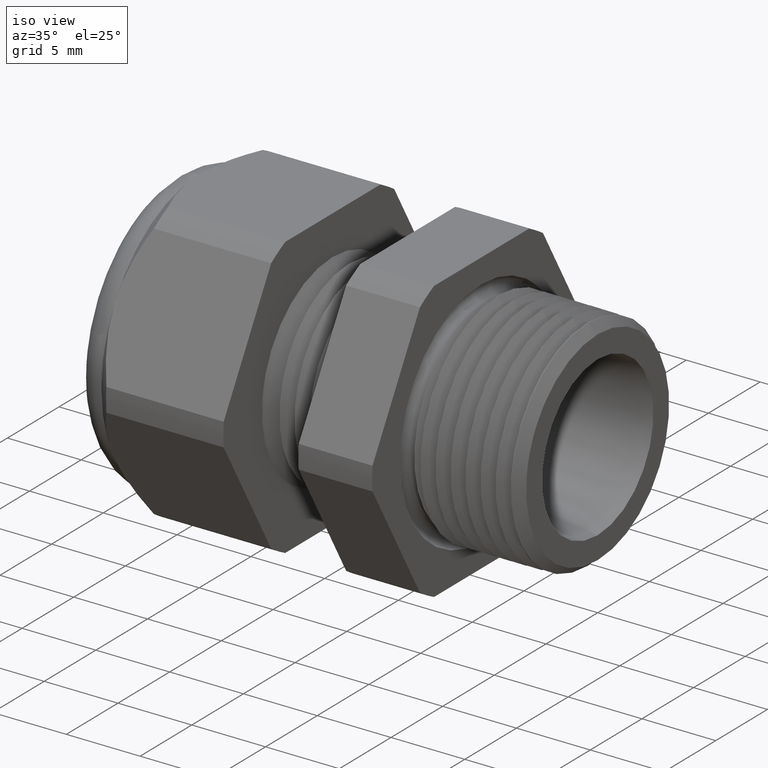
[diagram: clean part render]
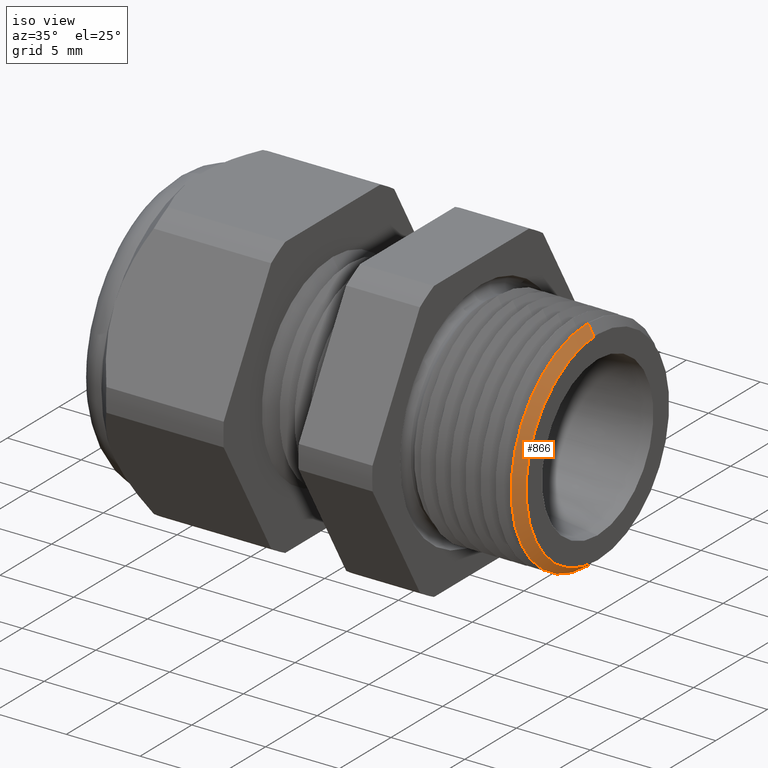
[diagram: same view with one face highlighted and labeled with its STEP entity id]
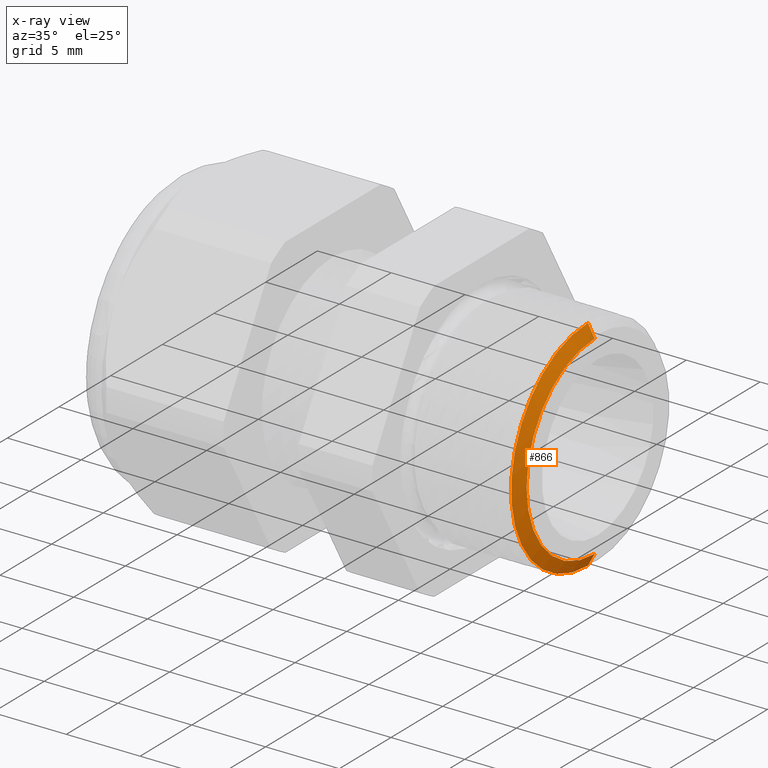
[diagram: x-ray of the same camera — body ghosted, the highlighted face saturated]
A machine part, iso view. The second image highlights one B-rep face of the part: STEP entity #866.
The next image is the same camera in x-ray: the body ghosted, the highlighted face saturated — about 0% of this face is hidden behind the body in this view.
In plain terms, the highlighted conical surface has half-angle 61.5 deg.
Its self-contained STEP definition (entity closure, byte-faithful):
#437 = EDGE_CURVE ( 'NONE', #978, #975, #2000, .T. ) ;
#866 = ADVANCED_FACE ( 'NONE', ( #2662 ), #2661, .T. ) ;
#867 = EDGE_LOOP ( 'NONE', ( #868, #869, #871, #872 ) ) ;
#868 = ORIENTED_EDGE ( 'NONE', *, *, #974, .F. ) ;
#869 = ORIENTED_EDGE ( 'NONE', *, *, #870, .F. ) ;
#870 = EDGE_CURVE ( 'NONE', #1009, #1008, #2718, .T. ) ;
#871 = ORIENTED_EDGE ( 'NONE', *, *, #980, .T. ) ;
#872 = ORIENTED_EDGE ( 'NONE', *, *, #437, .T. ) ;
#974 = EDGE_CURVE ( 'NONE', #1008, #975, #2836, .T. ) ;
#975 = VERTEX_POINT ( 'NONE', #2832 ) ;
#978 = VERTEX_POINT ( 'NONE', #2826 ) ;
#980 = EDGE_CURVE ( 'NONE', #1009, #978, #2825, .T. ) ;
#1008 = VERTEX_POINT ( 'NONE', #2884 ) ;
#1009 = VERTEX_POINT ( 'NONE', #2883 ) ;
#1997 = DIRECTION ( 'NONE',  ( 0.0000000000000000000, 0.0000000000000000000, 1.000000000000000000 ) ) ;
#1998 = DIRECTION ( 'NONE',  ( 1.000000000000000000, 0.0000000000000000000, 0.0000000000000000000 ) ) ;
#1999 = AXIS2_PLACEMENT_3D ( 'NONE', #2004, #1998, #1997 ) ;
#2000 = CIRCLE ( 'NONE', #1999, 0.2925621927390193400 ) ;
#2004 = CARTESIAN_POINT ( 'NONE',  ( -0.02596160015483826200, 0.0000000000000000000, 0.0000000000000000000 ) ) ;
#2661 = CONICAL_SURFACE ( 'NONE', #2722, 0.2999999999999999900, 1.073377489976514900 ) ;
#2662 = FACE_OUTER_BOUND ( 'NONE', #867, .T. ) ;
#2715 = DIRECTION ( 'NONE',  ( 0.0000000000000000000, 0.0000000000000000000, -1.000000000000000000 ) ) ;
#2716 = DIRECTION ( 'NONE',  ( 1.000000000000000000, 0.0000000000000000000, 0.0000000000000000000 ) ) ;
#2717 = AXIS2_PLACEMENT_3D ( 'NONE', #2723, #2716, #2715 ) ;
#2718 = CIRCLE ( 'NONE', #2717, 0.2594091762748933500 ) ;
#2719 = DIRECTION ( 'NONE',  ( 0.0000000000000000000, 0.0000000000000000000, 1.000000000000000000 ) ) ;
#2720 = DIRECTION ( 'NONE',  ( -1.000000000000000000, 0.0000000000000000000, 0.0000000000000000000 ) ) ;
#2721 = CARTESIAN_POINT ( 'NONE',  ( -0.02999999999999981500, 0.0000000000000000000, 0.0000000000000000000 ) ) ;
#2722 = AXIS2_PLACEMENT_3D ( 'NONE', #2721, #2720, #2719 ) ;
#2723 = CARTESIAN_POINT ( 'NONE',  ( -0.007960980905434192300, 0.0000000000000000000, 0.0000000000000000000 ) ) ;
#2822 = DIRECTION ( 'NONE',  ( -0.4771587602596063500, 0.0000000000000000000, 0.8788171126619663800 ) ) ;
#2823 = VECTOR ( 'NONE', #2822, 39.37007874015748900 ) ;
#2824 = CARTESIAN_POINT ( 'NONE',  ( -0.02999999999999981500, 0.0000000000000000000, 0.2999999999999999900 ) ) ;
#2825 = LINE ( 'NONE', #2824, #2823 ) ;
#2826 = CARTESIAN_POINT ( 'NONE',  ( -0.02596160015483826200, 0.0000000000000000000, 0.2925621927390193400 ) ) ;
#2832 = CARTESIAN_POINT ( 'NONE',  ( -0.02596160015483826200, 3.583119152807031600E-017, -0.2925621927390193400 ) ) ;
#2833 = DIRECTION ( 'NONE',  ( -0.4771587602596063500, 1.076240564057396000E-016, -0.8788171126619663800 ) ) ;
#2834 = VECTOR ( 'NONE', #2833, 39.37007874015748900 ) ;
#2835 = CARTESIAN_POINT ( 'NONE',  ( -0.02999999999999981500, 3.673940397442058900E-017, -0.2999999999999999900 ) ) ;
#2836 = LINE ( 'NONE', #2835, #2834 ) ;
#2883 = CARTESIAN_POINT ( 'NONE',  ( -0.007960980905434192300, 0.0000000000000000000, 0.2594091762748933500 ) ) ;
#2884 = CARTESIAN_POINT ( 'NONE',  ( -0.007960980905434192300, 3.379849851419353300E-017, -0.2594091762748933500 ) ) ;